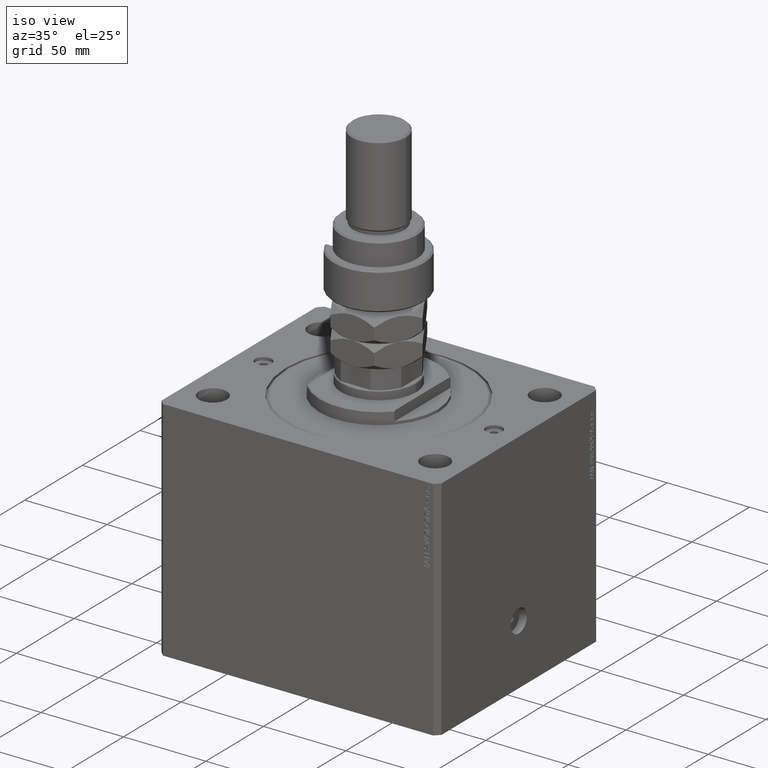
[diagram: clean part render]
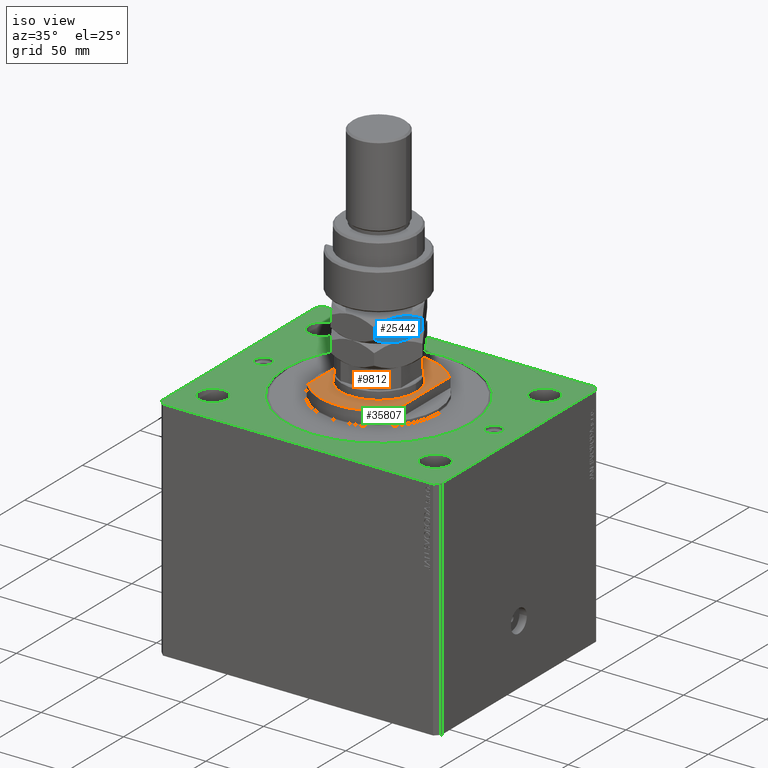
[diagram: same view with three faces highlighted in distinct colors, each labeled with its STEP entity id]
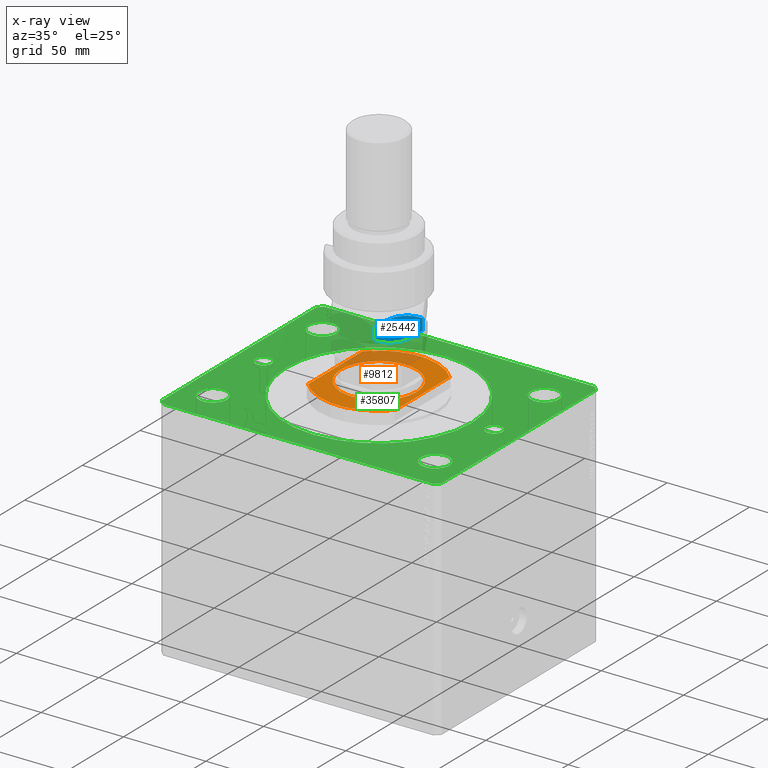
[diagram: x-ray of the same camera — body ghosted, the three highlighted faces saturated]
A machine part, iso view with three faces highlighted in distinct colors.
The next image is the same camera in x-ray (body ghosted, the three faces saturated) — at least one of them is partly hidden behind the body in this view.
Their STEP definitions:

[orange] entity #9812 — the highlighted planar face has unit normal (0, 0, 1).
#209 = ORIENTED_EDGE ( 'NONE', *, *, #35813, .F. ) ;
#634 = DIRECTION ( 'NONE',  ( -0.000000000000000000, -0.000000000000000000, 1.000000000000000000 ) ) ;
#2072 = DIRECTION ( 'NONE',  ( -1.000000000000000000, 0.000000000000000000, 0.000000000000000000 ) ) ;
#2267 = CARTESIAN_POINT ( 'NONE',  ( -26.50000000000000000, 23.62202362203536765, -8.000000000000000000 ) ) ;
#3938 = VERTEX_POINT ( 'NONE', #47853 ) ;
#5555 = AXIS2_PLACEMENT_3D ( 'NONE', #36043, #24856, #32218 ) ;
#6711 = EDGE_CURVE ( 'NONE', #3938, #28620, #20204, .T. ) ;
#7790 = CARTESIAN_POINT ( 'NONE',  ( 26.50000000000000000, -36.36963018783666257, -8.000000000000000000 ) ) ;
#9047 = CARTESIAN_POINT ( 'NONE',  ( 0.000000000000000000, 0.000000000000000000, -8.000000000000000000 ) ) ;
#9812 = ADVANCED_FACE ( 'NONE', ( #30023, #30758 ), #10736, .T. ) ;
#10486 = DIRECTION ( 'NONE',  ( 0.000000000000000000, 0.000000000000000000, -1.000000000000000000 ) ) ;
#10587 = ORIENTED_EDGE ( 'NONE', *, *, #6711, .T. ) ;
#10736 = PLANE ( 'NONE',  #25483 ) ;
#11582 = DIRECTION ( 'NONE',  ( 0.000000000000000000, -1.000000000000000000, -0.000000000000000000 ) ) ;
#11736 = DIRECTION ( 'NONE',  ( -0.000000000000000000, -1.000000000000000000, -0.000000000000000000 ) ) ;
#15543 = CARTESIAN_POINT ( 'NONE',  ( -26.50000000000000000, -36.36963018783666257, -8.000000000000000000 ) ) ;
#16080 = CARTESIAN_POINT ( 'NONE',  ( 0.000000000000000000, 0.000000000000000000, -8.000000000000000000 ) ) ;
#16426 = CARTESIAN_POINT ( 'NONE',  ( -23.00000000000001776, 0.000000000000000000, -8.000000000000000000 ) ) ;
#17075 = ORIENTED_EDGE ( 'NONE', *, *, #32917, .T. ) ;
#20204 = LINE ( 'NONE', #7790, #46408 ) ;
#22348 = EDGE_CURVE ( 'NONE', #24926, #24638, #46871, .T. ) ;
#23937 = VECTOR ( 'NONE', #11736, 1000.000000000000000 ) ;
#24638 = VERTEX_POINT ( 'NONE', #16426 ) ;
#24856 = DIRECTION ( 'NONE',  ( -0.000000000000000000, -0.000000000000000000, 1.000000000000000000 ) ) ;
#24926 = VERTEX_POINT ( 'NONE', #42766 ) ;
#25483 = AXIS2_PLACEMENT_3D ( 'NONE', #34101, #10486, #30512 ) ;
#25758 = EDGE_CURVE ( 'NONE', #28620, #41925, #38931, .T. ) ;
#26413 = EDGE_LOOP ( 'NONE', ( #41785, #10587, #36020, #209 ) ) ;
#28620 = VERTEX_POINT ( 'NONE', #49170 ) ;
#30023 = FACE_BOUND ( 'NONE', #49486, .T. ) ;
#30512 = DIRECTION ( 'NONE',  ( -1.000000000000000000, 0.000000000000000000, -0.000000000000000000 ) ) ;
#30758 = FACE_OUTER_BOUND ( 'NONE', #26413, .T. ) ;
#30801 = AXIS2_PLACEMENT_3D ( 'NONE', #43588, #40290, #31931 ) ;
#31910 = AXIS2_PLACEMENT_3D ( 'NONE', #16080, #634, #2072 ) ;
#31931 = DIRECTION ( 'NONE',  ( -1.000000000000000000, 0.000000000000000000, 0.000000000000000000 ) ) ;
#32218 = DIRECTION ( 'NONE',  ( -1.000000000000000000, 0.000000000000000000, 0.000000000000000000 ) ) ;
#32917 = EDGE_CURVE ( 'NONE', #24638, #24926, #40820, .T. ) ;
#33531 = EDGE_CURVE ( 'NONE', #35476, #3938, #44103, .T. ) ;
#34101 = CARTESIAN_POINT ( 'NONE',  ( 0.000000000000000000, 0.000000000000000000, -8.000000000000000000 ) ) ;
#34862 = LINE ( 'NONE', #15543, #23937 ) ;
#35476 = VERTEX_POINT ( 'NONE', #2267 ) ;
#35813 = EDGE_CURVE ( 'NONE', #35476, #41925, #34862, .T. ) ;
#36020 = ORIENTED_EDGE ( 'NONE', *, *, #25758, .T. ) ;
#36043 = CARTESIAN_POINT ( 'NONE',  ( 0.000000000000000000, 0.000000000000000000, -8.000000000000000000 ) ) ;
#36292 = ORIENTED_EDGE ( 'NONE', *, *, #22348, .T. ) ;
#38931 = CIRCLE ( 'NONE', #30801, 35.49999999999996447 ) ;
#39767 = DIRECTION ( 'NONE',  ( -1.000000000000000000, 0.000000000000000000, 0.000000000000000000 ) ) ;
#40259 = DIRECTION ( 'NONE',  ( 0.000000000000000000, 0.000000000000000000, -1.000000000000000000 ) ) ;
#40290 = DIRECTION ( 'NONE',  ( 0.000000000000000000, 0.000000000000000000, -1.000000000000000000 ) ) ;
#40820 = CIRCLE ( 'NONE', #31910, 23.00000000000001776 ) ;
#41785 = ORIENTED_EDGE ( 'NONE', *, *, #33531, .T. ) ;
#41925 = VERTEX_POINT ( 'NONE', #42754 ) ;
#42754 = CARTESIAN_POINT ( 'NONE',  ( -26.50000000000000711, -23.62202362203537476, -8.000000000000000000 ) ) ;
#42766 = CARTESIAN_POINT ( 'NONE',  ( 23.00000000000001776, 2.816687638038914718E-15, -8.000000000000000000 ) ) ;
#43588 = CARTESIAN_POINT ( 'NONE',  ( 0.000000000000000000, 0.000000000000000000, -8.000000000000000000 ) ) ;
#44103 = CIRCLE ( 'NONE', #47317, 35.49999999999996447 ) ;
#46408 = VECTOR ( 'NONE', #11582, 1000.000000000000000 ) ;
#46871 = CIRCLE ( 'NONE', #5555, 23.00000000000001776 ) ;
#47317 = AXIS2_PLACEMENT_3D ( 'NONE', #9047, #40259, #39767 ) ;
#47853 = CARTESIAN_POINT ( 'NONE',  ( 26.50000000000000000, 23.62202362203536765, -8.000000000000000000 ) ) ;
#49170 = CARTESIAN_POINT ( 'NONE',  ( 26.50000000000000000, -23.62202362203536765, -8.000000000000000000 ) ) ;
#49486 = EDGE_LOOP ( 'NONE', ( #17075, #36292 ) ) ;

[blue] entity #25442 — the highlighted planar face has unit normal (-0.866, 0.5, 0).
#740 = CARTESIAN_POINT ( 'NONE',  ( 23.00000000000000711, 0.5819124658698872077, 28.00000000000000000 ) ) ;
#2663 = CARTESIAN_POINT ( 'NONE',  ( 23.00000000000000000, 13.27905619136138959, 17.55811238272277564 ) ) ;
#3136 = CARTESIAN_POINT ( 'NONE',  ( 23.00000000000000355, -11.19584287463890959, 16.56112058300224632 ) ) ;
#3451 = EDGE_CURVE ( 'NONE', #45540, #22591, #11964, .T. ) ;
#6368 = VECTOR ( 'NONE', #31740, 1000.000000000000000 ) ;
#7182 = CARTESIAN_POINT ( 'NONE',  ( 23.00000000000001066, -0.5819124658698887620, 14.00000000000000711 ) ) ;
#8155 = CARTESIAN_POINT ( 'NONE',  ( 23.00000000000000000, 13.27905619136138959, 28.00000000000000000 ) ) ;
#10592 = CARTESIAN_POINT ( 'NONE',  ( 23.00000000000000355, 9.038140464506014382, 15.70670540628181477 ) ) ;
#10733 = CARTESIAN_POINT ( 'NONE',  ( 23.00000000000000000, -1.168850493887471087, 14.02243711562833184 ) ) ;
#11964 = B_SPLINE_CURVE_WITH_KNOTS ( 'NONE', 3,
 ( #33348, #7182, #10733, #38142, #14037, #21646, #49038, #30510, #18844, #3136, #48787, #29517 ),
 .UNSPECIFIED., .F., .F.,
 ( 4, 2, 2, 2, 2, 4 ),
 ( 0.04777139595992687532, 0.04949914554651194121, 0.05122689513309700016, 0.05468239430626712499, 0.05813789347943724983, 0.06159339265260737467 ),
 .UNSPECIFIED. ) ;
#12631 = CARTESIAN_POINT ( 'NONE',  ( 23.00000000000000000, 5.732845801352522308, 27.32003707801577619 ) ) ;
#13263 = ORIENTED_EDGE ( 'NONE', *, *, #50044, .F. ) ;
#13538 = CARTESIAN_POINT ( 'NONE',  ( 22.99999999999999645, 0.000000000000000000, 14.00000000000000000 ) ) ;
#13673 = EDGE_CURVE ( 'NONE', #24078, #22591, #34321, .T. ) ;
#14037 = CARTESIAN_POINT ( 'NONE',  ( 23.00000000000000355, -2.901718448039537712, 14.17547147104708571 ) ) ;
#14611 = AXIS2_PLACEMENT_3D ( 'NONE', #45392, #45642, #41350 ) ;
#16191 = CARTESIAN_POINT ( 'NONE',  ( 23.00000000000000355, 4.611258391204997586, 27.56938464817973511 ) ) ;
#16363 = CARTESIAN_POINT ( 'NONE',  ( 22.99999999999999645, -11.20010744839417427, 25.43691701641144221 ) ) ;
#17673 = CARTESIAN_POINT ( 'NONE',  ( 23.00000000000000000, 13.27905619136138959, 24.44188761727722436 ) ) ;
#17951 = CARTESIAN_POINT ( 'NONE',  ( 23.00000000000000355, 4.604003285773385024, 14.35917286671931059 ) ) ;
#18203 = CARTESIAN_POINT ( 'NONE',  ( 23.00000000000001066, 7.937214062685167271, 15.32555602763360092 ) ) ;
#18575 = EDGE_CURVE ( 'NONE', #33353, #36192, #30541, .T. ) ;
#18844 = CARTESIAN_POINT ( 'NONE',  ( 23.00000000000000355, -9.037287856520078932, 15.69203433471579778 ) ) ;
#19933 = CARTESIAN_POINT ( 'NONE',  ( 23.00000000000000000, -7.937214062685161942, 26.67444397236640086 ) ) ;
#21383 = CARTESIAN_POINT ( 'NONE',  ( 23.00000000000000000, -13.27905619136138959, 24.44188761727722792 ) ) ;
#21646 = CARTESIAN_POINT ( 'NONE',  ( 23.00000000000000355, -4.611258391204995810, 14.43061535182026667 ) ) ;
#22161 = B_SPLINE_CURVE_WITH_KNOTS ( 'NONE', 3,
 ( #23992, #23735, #16363, #39482, #24494, #19933, #36182, #28045, #36422, #44012 ),
 .UNSPECIFIED., .F., .F.,
 ( 4, 2, 2, 2, 4 ),
 ( 0.03391842154671734916, 0.03738166515001972723, 0.03911328695167091973, 0.04084490875332210530, 0.04777139595992686838 ),
 .UNSPECIFIED. ) ;
#22261 = CARTESIAN_POINT ( 'NONE',  ( 22.99999999999999289, 9.585014738077491714, 15.91244084231266420 ) ) ;
#22591 = VERTEX_POINT ( 'NONE', #44826 ) ;
#23118 = DIRECTION ( 'NONE',  ( -0.000000000000000000, -0.000000000000000000, -1.000000000000000000 ) ) ;
#23735 = CARTESIAN_POINT ( 'NONE',  ( 23.00000000000000000, -12.24963129209447565, 24.95660006691067778 ) ) ;
#23992 = CARTESIAN_POINT ( 'NONE',  ( 23.00000000000000000, -13.27905619136138959, 24.44188761727722792 ) ) ;
#24078 = VERTEX_POINT ( 'NONE', #21383 ) ;
#24312 = CARTESIAN_POINT ( 'NONE',  ( 23.00000000000000355, 11.19584287463890782, 25.43887941699775368 ) ) ;
#24494 = CARTESIAN_POINT ( 'NONE',  ( 23.00000000000000000, -9.038140464506012606, 26.29329459371818345 ) ) ;
#24565 = CARTESIAN_POINT ( 'NONE',  ( 23.00000000000000355, 9.037287856520077156, 26.30796566528420399 ) ) ;
#25091 = EDGE_CURVE ( 'NONE', #24078, #33353, #22161, .T. ) ;
#25442 = ADVANCED_FACE ( 'NONE', ( #34256 ), #29923, .F. ) ;
#25592 = VECTOR ( 'NONE', #23118, 1000.000000000000000 ) ;
#26562 = CARTESIAN_POINT ( 'NONE',  ( 23.00000000000000000, 13.27905619136138959, 17.55811238272277564 ) ) ;
#26924 = CARTESIAN_POINT ( 'NONE',  ( 23.00000000000000000, -13.27905619136138959, 28.00000000000000000 ) ) ;
#28045 = CARTESIAN_POINT ( 'NONE',  ( 23.00000000000000711, -4.604003285773378806, 27.64082713328069119 ) ) ;
#28114 = CARTESIAN_POINT ( 'NONE',  ( 22.99999999999999645, 0.000000000000000000, 28.00000000000000000 ) ) ;
#29517 = CARTESIAN_POINT ( 'NONE',  ( 23.00000000000000000, -13.27905619136138782, 17.55811238272277564 ) ) ;
#29626 = CARTESIAN_POINT ( 'NONE',  ( 23.00000000000000355, 2.332866569036886606, 14.00000000000000355 ) ) ;
#29923 = PLANE ( 'NONE',  #14611 ) ;
#30371 = CARTESIAN_POINT ( 'NONE',  ( 22.99999999999999289, 12.24963129209448276, 17.04339993308932222 ) ) ;
#30391 = ORIENTED_EDGE ( 'NONE', *, *, #3451, .F. ) ;
#30510 = CARTESIAN_POINT ( 'NONE',  ( 23.00000000000000355, -7.945847288453419921, 15.31073039083534226 ) ) ;
#30541 = B_SPLINE_CURVE_WITH_KNOTS ( 'NONE', 3,
 ( #28114, #740, #47386, #32431, #31930, #16191, #12631, #31679, #24565, #24312, #39296, #47628 ),
 .UNSPECIFIED., .F., .F.,
 ( 4, 2, 2, 2, 2, 4 ),
 ( 0.04777139595992686838, 0.04949914554651193427, 0.05122689513309699322, 0.05468239430626712499, 0.05813789347943724983, 0.06159339265260738161 ),
 .UNSPECIFIED. ) ;
#31510 = ORIENTED_EDGE ( 'NONE', *, *, #25091, .F. ) ;
#31630 = B_SPLINE_CURVE_WITH_KNOTS ( 'NONE', 3,
 ( #26562, #30371, #33454, #22261, #10592, #18203, #45839, #17951, #29626, #41050 ),
 .UNSPECIFIED., .F., .F.,
 ( 4, 2, 2, 2, 4 ),
 ( 0.03391842154671734916, 0.03738166515001972723, 0.03911328695167091973, 0.04084490875332210530, 0.04777139595992687532 ),
 .UNSPECIFIED. ) ;
#31679 = CARTESIAN_POINT ( 'NONE',  ( 22.99999999999999645, 7.945847288453418145, 26.68926960916466129 ) ) ;
#31740 = DIRECTION ( 'NONE',  ( -0.000000000000000000, -0.000000000000000000, -1.000000000000000000 ) ) ;
#31930 = CARTESIAN_POINT ( 'NONE',  ( 23.00000000000000000, 2.901718448039539044, 27.82452852895291429 ) ) ;
#31989 = LINE ( 'NONE', #8155, #6368 ) ;
#32431 = CARTESIAN_POINT ( 'NONE',  ( 22.99999999999999289, 2.327345773459494005, 27.88976552227909878 ) ) ;
#33348 = CARTESIAN_POINT ( 'NONE',  ( 22.99999999999999645, 0.000000000000000000, 14.00000000000000000 ) ) ;
#33353 = VERTEX_POINT ( 'NONE', #41571 ) ;
#33454 = CARTESIAN_POINT ( 'NONE',  ( 23.00000000000000000, 11.20010744839417782, 16.56308298358856135 ) ) ;
#34256 = FACE_OUTER_BOUND ( 'NONE', #47488, .T. ) ;
#34321 = LINE ( 'NONE', #26924, #25592 ) ;
#36182 = CARTESIAN_POINT ( 'NONE',  ( 22.99999999999999645, -7.384104261058114460, 26.84961951312581618 ) ) ;
#36192 = VERTEX_POINT ( 'NONE', #17673 ) ;
#36422 = CARTESIAN_POINT ( 'NONE',  ( 23.00000000000000711, -2.332866569036887938, 27.99999999999999645 ) ) ;
#36567 = VERTEX_POINT ( 'NONE', #2663 ) ;
#37812 = ORIENTED_EDGE ( 'NONE', *, *, #47914, .F. ) ;
#38142 = CARTESIAN_POINT ( 'NONE',  ( 23.00000000000000000, -2.327345773459499334, 14.11023447772089945 ) ) ;
#39296 = CARTESIAN_POINT ( 'NONE',  ( 23.00000000000000711, 12.24912306375522242, 24.95685418108031328 ) ) ;
#39482 = CARTESIAN_POINT ( 'NONE',  ( 22.99999999999999289, -9.585014738077486385, 26.08755915768734468 ) ) ;
#40677 = ORIENTED_EDGE ( 'NONE', *, *, #13673, .T. ) ;
#41050 = CARTESIAN_POINT ( 'NONE',  ( 22.99999999999999645, 0.000000000000000000, 14.00000000000000000 ) ) ;
#41350 = DIRECTION ( 'NONE',  ( 0.000000000000000000, 0.000000000000000000, 1.000000000000000000 ) ) ;
#41571 = CARTESIAN_POINT ( 'NONE',  ( 22.99999999999999645, 0.000000000000000000, 28.00000000000000000 ) ) ;
#44012 = CARTESIAN_POINT ( 'NONE',  ( 22.99999999999999645, 0.000000000000000000, 28.00000000000000000 ) ) ;
#44826 = CARTESIAN_POINT ( 'NONE',  ( 23.00000000000000000, -13.27905619136138782, 17.55811238272277564 ) ) ;
#45392 = CARTESIAN_POINT ( 'NONE',  ( 23.00000000000000000, -13.27905619136138959, 28.00000000000000000 ) ) ;
#45540 = VERTEX_POINT ( 'NONE', #13538 ) ;
#45642 = DIRECTION ( 'NONE',  ( -1.000000000000000000, 0.000000000000000000, 0.000000000000000000 ) ) ;
#45839 = CARTESIAN_POINT ( 'NONE',  ( 23.00000000000000711, 7.384104261058126895, 15.15038048687418559 ) ) ;
#47386 = CARTESIAN_POINT ( 'NONE',  ( 23.00000000000000000, 1.168850493887465758, 27.97756288437166461 ) ) ;
#47488 = EDGE_LOOP ( 'NONE', ( #13263, #37812, #47963, #31510, #40677, #30391 ) ) ;
#47628 = CARTESIAN_POINT ( 'NONE',  ( 23.00000000000000000, 13.27905619136138959, 24.44188761727722436 ) ) ;
#47914 = EDGE_CURVE ( 'NONE', #36192, #36567, #31989, .T. ) ;
#47963 = ORIENTED_EDGE ( 'NONE', *, *, #18575, .F. ) ;
#48787 = CARTESIAN_POINT ( 'NONE',  ( 23.00000000000000711, -12.24912306375521531, 17.04314581891969382 ) ) ;
#49038 = CARTESIAN_POINT ( 'NONE',  ( 23.00000000000000711, -5.732845801352522308, 14.67996292198422736 ) ) ;
#50044 = EDGE_CURVE ( 'NONE', #36567, #45540, #31630, .T. ) ;

[green] entity #35807 — the highlighted planar face has unit normal (0, 0, 1).
#134 = DIRECTION ( 'NONE',  ( -0.7071067811865507924, -0.7071067811865441310, 0.000000000000000000 ) ) ;
#352 = FACE_BOUND ( 'NONE', #49835, .T. ) ;
#524 = DIRECTION ( 'NONE',  ( 1.000000000000000000, 0.000000000000000000, 0.000000000000000000 ) ) ;
#597 = FACE_OUTER_BOUND ( 'NONE', #46824, .T. ) ;
#1135 = CARTESIAN_POINT ( 'NONE',  ( -82.00000000000000000, 70.00000000000000000, 0.000000000000000000 ) ) ;
#1632 = CIRCLE ( 'NONE', #16205, 56.50000000000000711 ) ;
#1925 = CARTESIAN_POINT ( 'NONE',  ( 70.00000000000000000, 0.000000000000000000, 0.000000000000000000 ) ) ;
#2807 = CARTESIAN_POINT ( 'NONE',  ( 70.00000000000000000, 0.000000000000000000, 0.000000000000000000 ) ) ;
#4020 = CARTESIAN_POINT ( 'NONE',  ( -70.00000000000000000, 0.000000000000000000, 0.000000000000000000 ) ) ;
#4301 = EDGE_LOOP ( 'NONE', ( #6563, #24780 ) ) ;
#4701 = CARTESIAN_POINT ( 'NONE',  ( -65.00000000000000000, 0.000000000000000000, 0.000000000000000000 ) ) ;
#4949 = CIRCLE ( 'NONE', #8996, 8.499999999999992895 ) ;
#5655 = ORIENTED_EDGE ( 'NONE', *, *, #34405, .F. ) ;
#5690 = VERTEX_POINT ( 'NONE', #36241 ) ;
#5735 = DIRECTION ( 'NONE',  ( 1.000000000000000000, 0.000000000000000000, 0.000000000000000000 ) ) ;
#5868 = AXIS2_PLACEMENT_3D ( 'NONE', #43568, #21224, #9557 ) ;
#5909 = VERTEX_POINT ( 'NONE', #14019 ) ;
#5991 = CARTESIAN_POINT ( 'NONE',  ( 67.49999999999998579, -47.50000000000001421, 0.000000000000000000 ) ) ;
#6125 = ORIENTED_EDGE ( 'NONE', *, *, #35526, .F. ) ;
#6311 = VERTEX_POINT ( 'NONE', #34015 ) ;
#6417 = CARTESIAN_POINT ( 'NONE',  ( -67.50000000000000000, 47.50000000000000000, 0.000000000000000000 ) ) ;
#6563 = ORIENTED_EDGE ( 'NONE', *, *, #39641, .T. ) ;
#6632 = VERTEX_POINT ( 'NONE', #41804 ) ;
#7093 = CARTESIAN_POINT ( 'NONE',  ( 59.00000000000000000, -47.50000000000001421, 0.000000000000000000 ) ) ;
#7290 = EDGE_CURVE ( 'NONE', #27640, #16272, #23742, .T. ) ;
#7411 = VECTOR ( 'NONE', #10732, 1000.000000000000114 ) ;
#8125 = DIRECTION ( 'NONE',  ( 0.000000000000000000, 0.000000000000000000, 1.000000000000000000 ) ) ;
#8159 = VERTEX_POINT ( 'NONE', #22327 ) ;
#8619 = EDGE_CURVE ( 'NONE', #28900, #49296, #42987, .T. ) ;
#8996 = AXIS2_PLACEMENT_3D ( 'NONE', #5991, #9531, #5735 ) ;
#9000 = CARTESIAN_POINT ( 'NONE',  ( -82.00000000000000000, -70.00000000000000000, 0.000000000000000000 ) ) ;
#9008 = DIRECTION ( 'NONE',  ( 1.000000000000000000, 0.000000000000000000, 0.000000000000000000 ) ) ;
#9248 = DIRECTION ( 'NONE',  ( 1.000000000000000000, 0.000000000000000000, 0.000000000000000000 ) ) ;
#9249 = LINE ( 'NONE', #44503, #11209 ) ;
#9531 = DIRECTION ( 'NONE',  ( 0.000000000000000000, 0.000000000000000000, 1.000000000000000000 ) ) ;
#9557 = DIRECTION ( 'NONE',  ( 1.000000000000000000, 0.000000000000000000, 0.000000000000000000 ) ) ;
#9607 = CARTESIAN_POINT ( 'NONE',  ( -67.50000000000000000, 47.50000000000000000, 0.000000000000000000 ) ) ;
#9715 = DIRECTION ( 'NONE',  ( 0.000000000000000000, 0.000000000000000000, 1.000000000000000000 ) ) ;
#9730 = CARTESIAN_POINT ( 'NONE',  ( -85.00000000000000000, -67.00000000000000000, 0.000000000000000000 ) ) ;
#10405 = CARTESIAN_POINT ( 'NONE',  ( 82.00000000000056843, 70.00000000000000000, 0.000000000000000000 ) ) ;
#10732 = DIRECTION ( 'NONE',  ( -0.7071067811865361374, 0.7071067811865588970, 0.000000000000000000 ) ) ;
#10901 = DIRECTION ( 'NONE',  ( 1.000000000000000000, 0.000000000000000000, 0.000000000000000000 ) ) ;
#10979 = CARTESIAN_POINT ( 'NONE',  ( 85.00000000000052580, 66.99999999999995737, 0.000000000000000000 ) ) ;
#10999 = AXIS2_PLACEMENT_3D ( 'NONE', #23950, #35389, #20882 ) ;
#11176 = EDGE_CURVE ( 'NONE', #12759, #27694, #36414, .T. ) ;
#11209 = VECTOR ( 'NONE', #44251, 1000.000000000000000 ) ;
#11247 = DIRECTION ( 'NONE',  ( 0.000000000000000000, 0.000000000000000000, 1.000000000000000000 ) ) ;
#11259 = CARTESIAN_POINT ( 'NONE',  ( -85.00000000000001421, 67.00000000000001421, 0.000000000000000000 ) ) ;
#11357 = EDGE_CURVE ( 'NONE', #25426, #39575, #34119, .T. ) ;
#11411 = ORIENTED_EDGE ( 'NONE', *, *, #28455, .F. ) ;
#11489 = FACE_BOUND ( 'NONE', #47100, .T. ) ;
#12390 = ORIENTED_EDGE ( 'NONE', *, *, #7290, .F. ) ;
#12759 = VERTEX_POINT ( 'NONE', #19248 ) ;
#13041 = CARTESIAN_POINT ( 'NONE',  ( 82.00000000000056843, 70.00000000000000000, 0.000000000000000000 ) ) ;
#13155 = DIRECTION ( 'NONE',  ( 0.7071067811865474617, 0.7071067811865474617, 0.000000000000000000 ) ) ;
#13258 = EDGE_LOOP ( 'NONE', ( #34288, #37274 ) ) ;
#14019 = CARTESIAN_POINT ( 'NONE',  ( 76.00000000000001421, 47.49999999999999289, 0.000000000000000000 ) ) ;
#14168 = VECTOR ( 'NONE', #9248, 1000.000000000000000 ) ;
#14833 = VERTEX_POINT ( 'NONE', #10405 ) ;
#14900 = EDGE_CURVE ( 'NONE', #32619, #36378, #36187, .T. ) ;
#15671 = DIRECTION ( 'NONE',  ( 0.000000000000000000, 0.000000000000000000, 1.000000000000000000 ) ) ;
#15973 = ORIENTED_EDGE ( 'NONE', *, *, #11357, .T. ) ;
#16044 = DIRECTION ( 'NONE',  ( 1.000000000000000000, 0.000000000000000000, -0.000000000000000000 ) ) ;
#16205 = AXIS2_PLACEMENT_3D ( 'NONE', #24802, #35490, #25050 ) ;
#16272 = VERTEX_POINT ( 'NONE', #43710 ) ;
#17144 = CARTESIAN_POINT ( 'NONE',  ( 65.00000000000000000, 6.123233995736770227E-16, 0.000000000000000000 ) ) ;
#17197 = AXIS2_PLACEMENT_3D ( 'NONE', #9607, #32716, #47662 ) ;
#17277 = CARTESIAN_POINT ( 'NONE',  ( -75.99999999999998579, -47.50000000000001421, 0.000000000000000000 ) ) ;
#17373 = DIRECTION ( 'NONE',  ( 0.000000000000000000, -0.000000000000000000, -1.000000000000000000 ) ) ;
#17414 = DIRECTION ( 'NONE',  ( 1.000000000000000000, 0.000000000000000000, 0.000000000000000000 ) ) ;
#18142 = VECTOR ( 'NONE', #13155, 1000.000000000000114 ) ;
#18474 = ORIENTED_EDGE ( 'NONE', *, *, #32598, .T. ) ;
#18503 = CARTESIAN_POINT ( 'NONE',  ( 85.00000000000001421, -67.00000000000000000, 0.000000000000000000 ) ) ;
#19114 = FACE_BOUND ( 'NONE', #48852, .T. ) ;
#19248 = CARTESIAN_POINT ( 'NONE',  ( -82.00000000000000000, -70.00000000000000000, 0.000000000000000000 ) ) ;
#20427 = ORIENTED_EDGE ( 'NONE', *, *, #20624, .F. ) ;
#20624 = EDGE_CURVE ( 'NONE', #5690, #5909, #32511, .T. ) ;
#20882 = DIRECTION ( 'NONE',  ( 1.000000000000000000, 0.000000000000000000, 0.000000000000000000 ) ) ;
#20922 = CARTESIAN_POINT ( 'NONE',  ( -67.49999999999998579, -47.50000000000001421, 0.000000000000000000 ) ) ;
#20950 = EDGE_CURVE ( 'NONE', #6632, #49779, #4949, .T. ) ;
#21032 = CARTESIAN_POINT ( 'NONE',  ( 67.50000000000000000, 47.49999999999999289, 0.000000000000000000 ) ) ;
#21224 = DIRECTION ( 'NONE',  ( 0.000000000000000000, 0.000000000000000000, 1.000000000000000000 ) ) ;
#21251 = EDGE_CURVE ( 'NONE', #8159, #12759, #29765, .T. ) ;
#21417 = EDGE_CURVE ( 'NONE', #39575, #14833, #34099, .T. ) ;
#21680 = ORIENTED_EDGE ( 'NONE', *, *, #40615, .F. ) ;
#21873 = EDGE_CURVE ( 'NONE', #49296, #8159, #9249, .T. ) ;
#21932 = AXIS2_PLACEMENT_3D ( 'NONE', #6417, #9715, #22134 ) ;
#22047 = CIRCLE ( 'NONE', #17197, 8.499999999999992895 ) ;
#22134 = DIRECTION ( 'NONE',  ( 1.000000000000000000, 0.000000000000000000, 0.000000000000000000 ) ) ;
#22234 = VERTEX_POINT ( 'NONE', #46685 ) ;
#22327 = CARTESIAN_POINT ( 'NONE',  ( -85.00000000000000000, -67.00000000000000000, 0.000000000000000000 ) ) ;
#22370 = AXIS2_PLACEMENT_3D ( 'NONE', #2807, #49957, #10901 ) ;
#23019 = VECTOR ( 'NONE', #134, 1000.000000000000114 ) ;
#23057 = CARTESIAN_POINT ( 'NONE',  ( 56.50000000000000711, 0.000000000000000000, 0.000000000000000000 ) ) ;
#23323 = VERTEX_POINT ( 'NONE', #23057 ) ;
#23507 = DIRECTION ( 'NONE',  ( 1.000000000000000000, 0.000000000000000000, 0.000000000000000000 ) ) ;
#23660 = FACE_BOUND ( 'NONE', #42537, .T. ) ;
#23742 = CIRCLE ( 'NONE', #49668, 8.499999999999992895 ) ;
#23950 = CARTESIAN_POINT ( 'NONE',  ( 67.49999999999998579, -47.50000000000001421, 0.000000000000000000 ) ) ;
#24040 = CARTESIAN_POINT ( 'NONE',  ( -82.00000000000000000, 70.00000000000000000, 0.000000000000000000 ) ) ;
#24041 = CARTESIAN_POINT ( 'NONE',  ( -75.00000000000001421, 6.123233995736770227E-16, 0.000000000000000000 ) ) ;
#24556 = EDGE_CURVE ( 'NONE', #23323, #47225, #1632, .T. ) ;
#24741 = DIRECTION ( 'NONE',  ( 0.000000000000000000, 0.000000000000000000, 1.000000000000000000 ) ) ;
#24780 = ORIENTED_EDGE ( 'NONE', *, *, #14900, .T. ) ;
#24802 = CARTESIAN_POINT ( 'NONE',  ( 0.000000000000000000, 0.000000000000000000, 0.000000000000000000 ) ) ;
#25050 = DIRECTION ( 'NONE',  ( 1.000000000000000000, 0.000000000000000000, 0.000000000000000000 ) ) ;
#25209 = DIRECTION ( 'NONE',  ( 0.7071067811865474617, -0.7071067811865474617, 0.000000000000000000 ) ) ;
#25426 = VERTEX_POINT ( 'NONE', #18503 ) ;
#25533 = AXIS2_PLACEMENT_3D ( 'NONE', #26483, #11247, #16044 ) ;
#25996 = CARTESIAN_POINT ( 'NONE',  ( 85.00000000000052580, 66.99999999999995737, 0.000000000000000000 ) ) ;
#26483 = CARTESIAN_POINT ( 'NONE',  ( 0.000000000000000000, 0.000000000000000000, 0.000000000000000000 ) ) ;
#26506 = EDGE_CURVE ( 'NONE', #22234, #6311, #39766, .T. ) ;
#26789 = CARTESIAN_POINT ( 'NONE',  ( 75.00000000000001421, 0.000000000000000000, 0.000000000000000000 ) ) ;
#27389 = CARTESIAN_POINT ( 'NONE',  ( -70.00000000000000000, 0.000000000000000000, 0.000000000000000000 ) ) ;
#27640 = VERTEX_POINT ( 'NONE', #17277 ) ;
#27665 = CARTESIAN_POINT ( 'NONE',  ( -56.50000000000000711, 6.919254415182546126E-15, 0.000000000000000000 ) ) ;
#27694 = VERTEX_POINT ( 'NONE', #31899 ) ;
#27854 = DIRECTION ( 'NONE',  ( 1.000000000000000000, 0.000000000000000000, 0.000000000000000000 ) ) ;
#28083 = ORIENTED_EDGE ( 'NONE', *, *, #26506, .F. ) ;
#28397 = EDGE_CURVE ( 'NONE', #30886, #41993, #32605, .T. ) ;
#28455 = EDGE_CURVE ( 'NONE', #6311, #22234, #22047, .T. ) ;
#28753 = VECTOR ( 'NONE', #35913, 1000.000000000000000 ) ;
#28900 = VERTEX_POINT ( 'NONE', #24040 ) ;
#29579 = VECTOR ( 'NONE', #46494, 1000.000000000000000 ) ;
#29765 = LINE ( 'NONE', #9730, #41457 ) ;
#29785 = EDGE_CURVE ( 'NONE', #47225, #23323, #41552, .T. ) ;
#30383 = CIRCLE ( 'NONE', #46595, 5.000000000000004441 ) ;
#30868 = ORIENTED_EDGE ( 'NONE', *, *, #8619, .T. ) ;
#30886 = VERTEX_POINT ( 'NONE', #24041 ) ;
#31899 = CARTESIAN_POINT ( 'NONE',  ( 82.00000000000001421, -70.00000000000000000, 0.000000000000000000 ) ) ;
#32466 = DIRECTION ( 'NONE',  ( 1.000000000000000000, 0.000000000000000000, 0.000000000000000000 ) ) ;
#32511 = CIRCLE ( 'NONE', #38992, 8.500000000000007105 ) ;
#32598 = EDGE_CURVE ( 'NONE', #27694, #25426, #44614, .T. ) ;
#32605 = CIRCLE ( 'NONE', #39080, 5.000000000000004441 ) ;
#32619 = VERTEX_POINT ( 'NONE', #17144 ) ;
#32716 = DIRECTION ( 'NONE',  ( 0.000000000000000000, 0.000000000000000000, 1.000000000000000000 ) ) ;
#32875 = DIRECTION ( 'NONE',  ( 1.000000000000000000, 0.000000000000000000, 0.000000000000000000 ) ) ;
#34015 = CARTESIAN_POINT ( 'NONE',  ( -76.00000000000000000, 47.50000000000000000, 0.000000000000000000 ) ) ;
#34099 = LINE ( 'NONE', #10979, #7411 ) ;
#34119 = LINE ( 'NONE', #45752, #29579 ) ;
#34288 = ORIENTED_EDGE ( 'NONE', *, *, #24556, .F. ) ;
#34405 = EDGE_CURVE ( 'NONE', #16272, #27640, #47360, .T. ) ;
#34615 = FACE_BOUND ( 'NONE', #13258, .T. ) ;
#34786 = EDGE_CURVE ( 'NONE', #14833, #28900, #47548, .T. ) ;
#35389 = DIRECTION ( 'NONE',  ( 0.000000000000000000, 0.000000000000000000, 1.000000000000000000 ) ) ;
#35490 = DIRECTION ( 'NONE',  ( 0.000000000000000000, 0.000000000000000000, 1.000000000000000000 ) ) ;
#35526 = EDGE_CURVE ( 'NONE', #5909, #5690, #46597, .T. ) ;
#35807 = ADVANCED_FACE ( 'NONE', ( #597, #23660, #11489, #19114, #41960, #34615, #352, #38906 ), #46744, .T. ) ;
#35913 = DIRECTION ( 'NONE',  ( -1.000000000000000000, 0.000000000000000000, 0.000000000000000000 ) ) ;
#36187 = CIRCLE ( 'NONE', #22370, 5.000000000000004441 ) ;
#36241 = CARTESIAN_POINT ( 'NONE',  ( 59.00000000000000000, 47.49999999999999289, 0.000000000000000000 ) ) ;
#36269 = CARTESIAN_POINT ( 'NONE',  ( 82.00000000000001421, -70.00000000000000000, 0.000000000000000000 ) ) ;
#36378 = VERTEX_POINT ( 'NONE', #26789 ) ;
#36414 = LINE ( 'NONE', #9000, #14168 ) ;
#36530 = ORIENTED_EDGE ( 'NONE', *, *, #21417, .T. ) ;
#36915 = CIRCLE ( 'NONE', #10999, 8.499999999999992895 ) ;
#37274 = ORIENTED_EDGE ( 'NONE', *, *, #29785, .F. ) ;
#37721 = AXIS2_PLACEMENT_3D ( 'NONE', #21032, #48672, #32466 ) ;
#38069 = ORIENTED_EDGE ( 'NONE', *, *, #11176, .T. ) ;
#38256 = DIRECTION ( 'NONE',  ( 0.000000000000000000, 0.000000000000000000, 1.000000000000000000 ) ) ;
#38906 = FACE_BOUND ( 'NONE', #4301, .T. ) ;
#38992 = AXIS2_PLACEMENT_3D ( 'NONE', #49901, #38256, #23507 ) ;
#39080 = AXIS2_PLACEMENT_3D ( 'NONE', #27389, #8125, #524 ) ;
#39573 = ORIENTED_EDGE ( 'NONE', *, *, #20950, .F. ) ;
#39575 = VERTEX_POINT ( 'NONE', #25996 ) ;
#39641 = EDGE_CURVE ( 'NONE', #36378, #32619, #30383, .T. ) ;
#39766 = CIRCLE ( 'NONE', #21932, 8.499999999999992895 ) ;
#39967 = ORIENTED_EDGE ( 'NONE', *, *, #21251, .T. ) ;
#40268 = AXIS2_PLACEMENT_3D ( 'NONE', #4020, #15671, #27854 ) ;
#40615 = EDGE_CURVE ( 'NONE', #49779, #6632, #36915, .T. ) ;
#41457 = VECTOR ( 'NONE', #25209, 1000.000000000000114 ) ;
#41552 = CIRCLE ( 'NONE', #5868, 56.50000000000000711 ) ;
#41804 = CARTESIAN_POINT ( 'NONE',  ( 75.99999999999998579, -47.50000000000001421, 0.000000000000000000 ) ) ;
#41894 = CIRCLE ( 'NONE', #40268, 5.000000000000004441 ) ;
#41960 = FACE_BOUND ( 'NONE', #47749, .T. ) ;
#41993 = VERTEX_POINT ( 'NONE', #4701 ) ;
#42537 = EDGE_LOOP ( 'NONE', ( #28083, #11411 ) ) ;
#42955 = EDGE_CURVE ( 'NONE', #41993, #30886, #41894, .T. ) ;
#42987 = LINE ( 'NONE', #1135, #23019 ) ;
#43350 = AXIS2_PLACEMENT_3D ( 'NONE', #44303, #43562, #17414 ) ;
#43562 = DIRECTION ( 'NONE',  ( 0.000000000000000000, 0.000000000000000000, 1.000000000000000000 ) ) ;
#43568 = CARTESIAN_POINT ( 'NONE',  ( 0.000000000000000000, 0.000000000000000000, 0.000000000000000000 ) ) ;
#43710 = CARTESIAN_POINT ( 'NONE',  ( -59.00000000000000000, -47.50000000000001421, 0.000000000000000000 ) ) ;
#44251 = DIRECTION ( 'NONE',  ( 1.035655806553317576E-16, -1.000000000000000000, 0.000000000000000000 ) ) ;
#44303 = CARTESIAN_POINT ( 'NONE',  ( -67.49999999999998579, -47.50000000000001421, 0.000000000000000000 ) ) ;
#44503 = CARTESIAN_POINT ( 'NONE',  ( -85.00000000000001421, 67.00000000000001421, 0.000000000000000000 ) ) ;
#44614 = LINE ( 'NONE', #36269, #18142 ) ;
#45612 = ORIENTED_EDGE ( 'NONE', *, *, #28397, .F. ) ;
#45752 = CARTESIAN_POINT ( 'NONE',  ( 85.00000000000001421, -67.00000000000000000, 0.000000000000000000 ) ) ;
#46494 = DIRECTION ( 'NONE',  ( 3.728360903591945148E-15, 1.000000000000000000, 0.000000000000000000 ) ) ;
#46595 = AXIS2_PLACEMENT_3D ( 'NONE', #1925, #17373, #32875 ) ;
#46597 = CIRCLE ( 'NONE', #37721, 8.500000000000007105 ) ;
#46685 = CARTESIAN_POINT ( 'NONE',  ( -59.00000000000001421, 47.50000000000000000, 0.000000000000000000 ) ) ;
#46744 = PLANE ( 'NONE',  #25533 ) ;
#46824 = EDGE_LOOP ( 'NONE', ( #47165, #30868, #48721, #39967, #38069, #18474, #15973, #36530 ) ) ;
#47100 = EDGE_LOOP ( 'NONE', ( #6125, #20427 ) ) ;
#47165 = ORIENTED_EDGE ( 'NONE', *, *, #34786, .T. ) ;
#47225 = VERTEX_POINT ( 'NONE', #27665 ) ;
#47360 = CIRCLE ( 'NONE', #43350, 8.499999999999992895 ) ;
#47548 = LINE ( 'NONE', #13041, #28753 ) ;
#47662 = DIRECTION ( 'NONE',  ( 1.000000000000000000, 0.000000000000000000, 0.000000000000000000 ) ) ;
#47749 = EDGE_LOOP ( 'NONE', ( #5655, #12390 ) ) ;
#48672 = DIRECTION ( 'NONE',  ( 0.000000000000000000, 0.000000000000000000, 1.000000000000000000 ) ) ;
#48711 = ORIENTED_EDGE ( 'NONE', *, *, #42955, .F. ) ;
#48721 = ORIENTED_EDGE ( 'NONE', *, *, #21873, .T. ) ;
#48852 = EDGE_LOOP ( 'NONE', ( #39573, #21680 ) ) ;
#49296 = VERTEX_POINT ( 'NONE', #11259 ) ;
#49668 = AXIS2_PLACEMENT_3D ( 'NONE', #20922, #24741, #9008 ) ;
#49779 = VERTEX_POINT ( 'NONE', #7093 ) ;
#49835 = EDGE_LOOP ( 'NONE', ( #48711, #45612 ) ) ;
#49901 = CARTESIAN_POINT ( 'NONE',  ( 67.50000000000000000, 47.49999999999999289, 0.000000000000000000 ) ) ;
#49957 = DIRECTION ( 'NONE',  ( 0.000000000000000000, -0.000000000000000000, -1.000000000000000000 ) ) ;